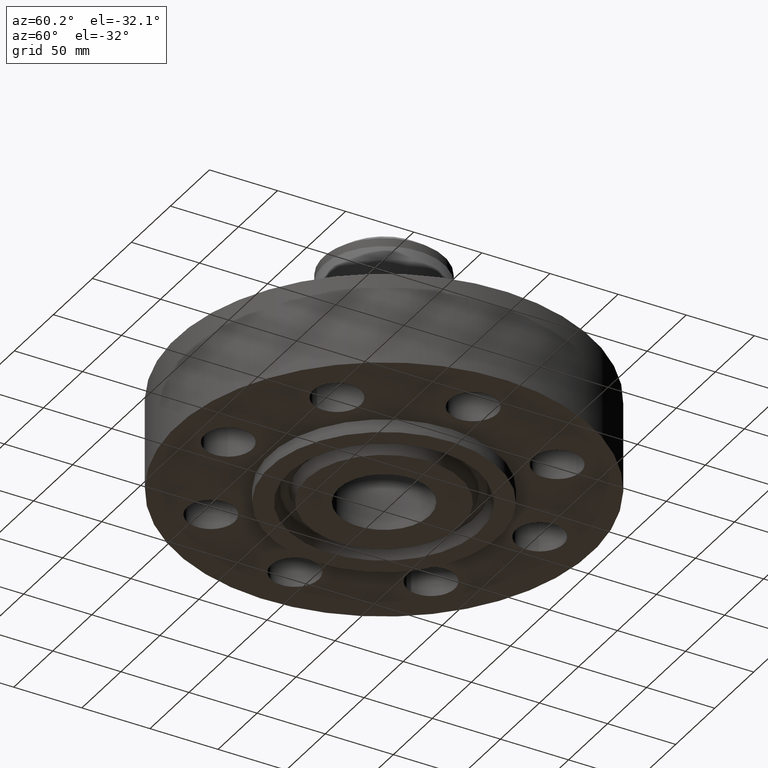
[diagram: clean part render]
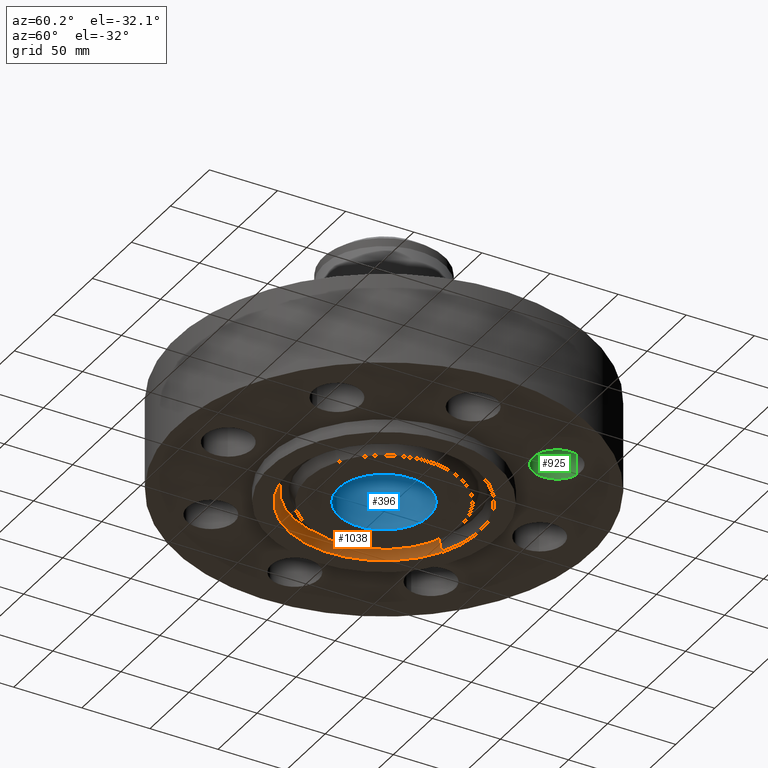
[diagram: same view with three faces highlighted in distinct colors, each labeled with its STEP entity id]
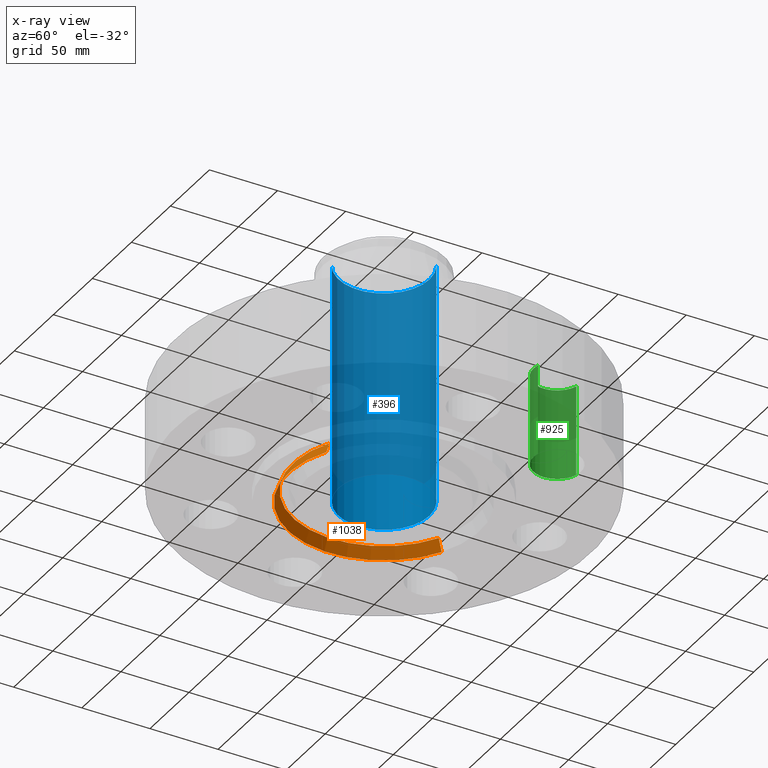
[diagram: x-ray of the same camera — body ghosted, the three highlighted faces saturated]
A machine part, auxiliary view with three faces highlighted in distinct colors.
The next image is the same camera in x-ray (body ghosted, the three faces saturated) — at least one of them is partly hidden behind the body in this view.
Their STEP definitions:

[orange] entity #1038 — the highlighted conical surface has half-angle 23 deg.
#937=AXIS2_PLACEMENT_3D('Circle Axis2P3D',#935,#936,$) ;
#984=AXIS2_PLACEMENT_3D('Circle Axis2P3D',#982,#983,$) ;
#1020=AXIS2_PLACEMENT_3D('Cone Axis2P3D',#1017,#1018,#1019) ;
#935=CARTESIAN_POINT('Axis2P3D Location',(-6.99353086378E-017,-8.39223703654E-016,-0.375000000001)) ;
#939=CARTESIAN_POINT('Vertex',(1.32585132702,-2.42695457492,-0.375000000001)) ;
#941=CARTESIAN_POINT('Vertex',(-1.32585132702,2.42695457492,-0.375000000001)) ;
#982=CARTESIAN_POINT('Axis2P3D Location',(0.,0.,-0.0383839389053)) ;
#986=CARTESIAN_POINT('Vertex',(-1.25734858943,2.30156115487,-0.0383839389053)) ;
#988=CARTESIAN_POINT('Vertex',(1.25734858943,-2.30156115487,-0.0383839389053)) ;
#1017=CARTESIAN_POINT('Axis2P3D Location',(0.,0.,-0.0383839389053)) ;
#1022=CARTESIAN_POINT('Line Origine',(-1.29159995823,2.3642578649,-0.206691969453)) ;
#1027=CARTESIAN_POINT('Line Origine',(1.29159995823,-2.3642578649,-0.206691969453)) ;
#936=DIRECTION('Axis2P3D Direction',(0.,0.,-0.0393700787402)) ;
#983=DIRECTION('Axis2P3D Direction',(0.,0.,0.0393700787402)) ;
#1018=DIRECTION('Axis2P3D Direction',(-0.,-0.,-0.0393700787402)) ;
#1019=DIRECTION('Axis2P3D XDirection',(-0.0188750212049,0.0345504945626,0.)) ;
#1023=DIRECTION('Vector Direction',(-0.00737505833565,0.0134999537303,-0.0362403485611)) ;
#1028=DIRECTION('Vector Direction',(0.00737505833565,-0.0134999537303,-0.0362403485611)) ;
#1024=VECTOR('Line Direction',#1023,0.0393700787402) ;
#1029=VECTOR('Line Direction',#1028,0.0393700787402) ;
#1033=ORIENTED_EDGE('',*,*,#943,.T.) ;
#1034=ORIENTED_EDGE('',*,*,#1026,.T.) ;
#1035=ORIENTED_EDGE('',*,*,#990,.T.) ;
#1036=ORIENTED_EDGE('',*,*,#1031,.F.) ;
#1038=ADVANCED_FACE('PartBody',(#1037),#1021,.F.) ;
#938=CIRCLE('generated circle',#937,2.76550000001) ;
#985=CIRCLE('generated circle',#984,2.62261495934) ;
#1021=CONICAL_SURFACE('Cone',#1020,2.62261495934,0.401425727959) ;
#943=EDGE_CURVE('',#940,#942,#938,.T.) ;
#990=EDGE_CURVE('',#987,#989,#985,.T.) ;
#1026=EDGE_CURVE('',#942,#987,#1025,.F.) ;
#1031=EDGE_CURVE('',#940,#989,#1030,.F.) ;
#1032=EDGE_LOOP('',(#1033,#1034,#1035,#1036)) ;
#1037=FACE_OUTER_BOUND('',#1032,.T.) ;
#1025=LINE('Line',#1022,#1024) ;
#1030=LINE('Line',#1027,#1029) ;
#940=VERTEX_POINT('',#939) ;
#942=VERTEX_POINT('',#941) ;
#987=VERTEX_POINT('',#986) ;
#989=VERTEX_POINT('',#988) ;

[blue] entity #396 — the highlighted cylindrical surface (partial cylindrical patch) has radius 33.3248 mm, axis along (0, 0, -1).
#343=AXIS2_PLACEMENT_3D('Cylinder Axis2P3D',#340,#341,#342) ;
#382=AXIS2_PLACEMENT_3D('Circle Axis2P3D',#380,#381,$) ;
#387=AXIS2_PLACEMENT_3D('Circle Axis2P3D',#385,#386,$) ;
#340=CARTESIAN_POINT('Axis2P3D Location',(0.,0.,3.12250000001)) ;
#349=CARTESIAN_POINT('Vertex',(0.629006306651,1.1513883212,6.62000000003)) ;
#351=CARTESIAN_POINT('Vertex',(-0.629006306651,-1.1513883212,6.62000000003)) ;
#354=CARTESIAN_POINT('Line Origine',(0.629006306651,1.1513883212,3.12250000001)) ;
#358=CARTESIAN_POINT('Vertex',(0.629006306651,1.1513883212,-0.375000000002)) ;
#365=CARTESIAN_POINT('Vertex',(-0.629006306651,-1.1513883212,-0.375000000002)) ;
#368=CARTESIAN_POINT('Line Origine',(-0.629006306651,-1.1513883212,3.12250000001)) ;
#380=CARTESIAN_POINT('Axis2P3D Location',(0.,0.,6.62000000003)) ;
#385=CARTESIAN_POINT('Axis2P3D Location',(0.,0.,-0.375000000002)) ;
#341=DIRECTION('Axis2P3D Direction',(0.,0.,-0.0393700787402)) ;
#342=DIRECTION('Axis2P3D XDirection',(-0.0188750212049,-0.0345504945626,0.)) ;
#355=DIRECTION('Vector Direction',(0.,0.,-0.0393700787402)) ;
#369=DIRECTION('Vector Direction',(0.,0.,-0.0393700787402)) ;
#381=DIRECTION('Axis2P3D Direction',(0.,0.,-0.0393700787402)) ;
#386=DIRECTION('Axis2P3D Direction',(0.,0.,-0.0393700787402)) ;
#356=VECTOR('Line Direction',#355,0.0393700787402) ;
#370=VECTOR('Line Direction',#369,0.0393700787402) ;
#391=ORIENTED_EDGE('',*,*,#384,.F.) ;
#392=ORIENTED_EDGE('',*,*,#372,.T.) ;
#393=ORIENTED_EDGE('',*,*,#389,.T.) ;
#394=ORIENTED_EDGE('',*,*,#360,.F.) ;
#396=ADVANCED_FACE('PartBody',(#395),#344,.F.) ;
#383=CIRCLE('generated circle',#382,1.31200000001) ;
#388=CIRCLE('generated circle',#387,1.31200000001) ;
#344=CYLINDRICAL_SURFACE('generated cylinder',#343,1.31200000001) ;
#360=EDGE_CURVE('',#350,#359,#357,.T.) ;
#372=EDGE_CURVE('',#352,#366,#371,.T.) ;
#384=EDGE_CURVE('',#352,#350,#383,.T.) ;
#389=EDGE_CURVE('',#366,#359,#388,.T.) ;
#390=EDGE_LOOP('',(#391,#392,#393,#394)) ;
#395=FACE_OUTER_BOUND('',#390,.T.) ;
#357=LINE('Line',#354,#356) ;
#371=LINE('Line',#368,#370) ;
#350=VERTEX_POINT('',#349) ;
#352=VERTEX_POINT('',#351) ;
#359=VERTEX_POINT('',#358) ;
#366=VERTEX_POINT('',#365) ;

[green] entity #925 — the highlighted cylindrical surface (edge-blend (fillet) strip) has radius 17.526 mm, axis along (0, -0, -1).
#509=AXIS2_PLACEMENT_3D('Circle Axis2P3D',#507,#508,$) ;
#886=AXIS2_PLACEMENT_3D('Cylinder Axis2P3D',#883,#884,#885) ;
#916=AXIS2_PLACEMENT_3D('Circle Axis2P3D',#914,#915,$) ;
#502=CARTESIAN_POINT('Vertex',(2.98771823886,3.84406976004,0.)) ;
#504=CARTESIAN_POINT('Vertex',(3.37624279184,2.51989127066,0.)) ;
#507=CARTESIAN_POINT('Axis2P3D Location',(3.18198051535,3.18198051535,0.)) ;
#883=CARTESIAN_POINT('Axis2P3D Location',(3.18198051535,3.18198051535,2.61606299214)) ;
#888=CARTESIAN_POINT('Line Origine',(2.98771823886,3.84406976004,1.31000000001)) ;
#892=CARTESIAN_POINT('Vertex',(2.98771823886,3.84406976004,2.62000000001)) ;
#895=CARTESIAN_POINT('Line Origine',(3.37624279184,2.51989127066,1.31000000001)) ;
#899=CARTESIAN_POINT('Vertex',(3.37624279184,2.51989127066,2.62000000001)) ;
#914=CARTESIAN_POINT('Axis2P3D Location',(3.18198051535,3.18198051535,2.62000000001)) ;
#508=DIRECTION('Axis2P3D Direction',(0.,0.,-0.0393700787402)) ;
#884=DIRECTION('Axis2P3D Direction',(0.,-0.,-0.0393700787402)) ;
#885=DIRECTION('Axis2P3D XDirection',(0.0110842335096,-0.0377775444876,0.)) ;
#889=DIRECTION('Vector Direction',(0.,0.,-0.0393700787402)) ;
#896=DIRECTION('Vector Direction',(0.,0.,-0.0393700787402)) ;
#915=DIRECTION('Axis2P3D Direction',(0.,-0.,-0.0393700787402)) ;
#890=VECTOR('Line Direction',#889,0.0393700787402) ;
#897=VECTOR('Line Direction',#896,0.0393700787402) ;
#920=ORIENTED_EDGE('',*,*,#901,.F.) ;
#921=ORIENTED_EDGE('',*,*,#511,.T.) ;
#922=ORIENTED_EDGE('',*,*,#894,.T.) ;
#923=ORIENTED_EDGE('',*,*,#918,.F.) ;
#925=ADVANCED_FACE('PartBody',(#924),#887,.F.) ;
#510=CIRCLE('generated circle',#509,0.690000000003) ;
#917=CIRCLE('generated circle',#916,0.690000000003) ;
#887=CYLINDRICAL_SURFACE('generated cylinder',#886,0.690000000003) ;
#511=EDGE_CURVE('',#505,#503,#510,.T.) ;
#894=EDGE_CURVE('',#503,#893,#891,.F.) ;
#901=EDGE_CURVE('',#505,#900,#898,.F.) ;
#918=EDGE_CURVE('',#900,#893,#917,.T.) ;
#919=EDGE_LOOP('',(#920,#921,#922,#923)) ;
#924=FACE_OUTER_BOUND('',#919,.T.) ;
#891=LINE('Line',#888,#890) ;
#898=LINE('Line',#895,#897) ;
#503=VERTEX_POINT('',#502) ;
#505=VERTEX_POINT('',#504) ;
#893=VERTEX_POINT('',#892) ;
#900=VERTEX_POINT('',#899) ;